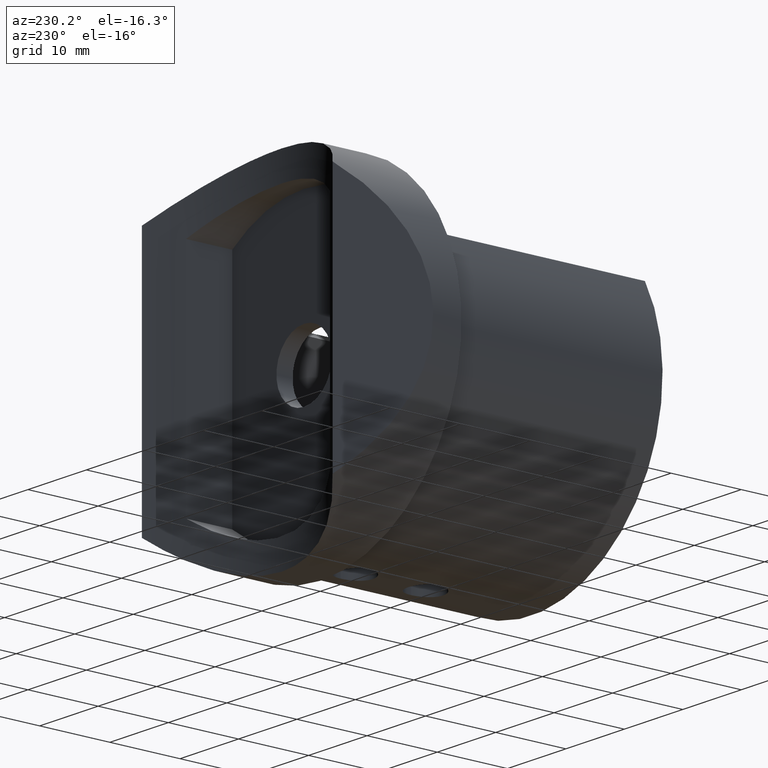
[diagram: clean part render]
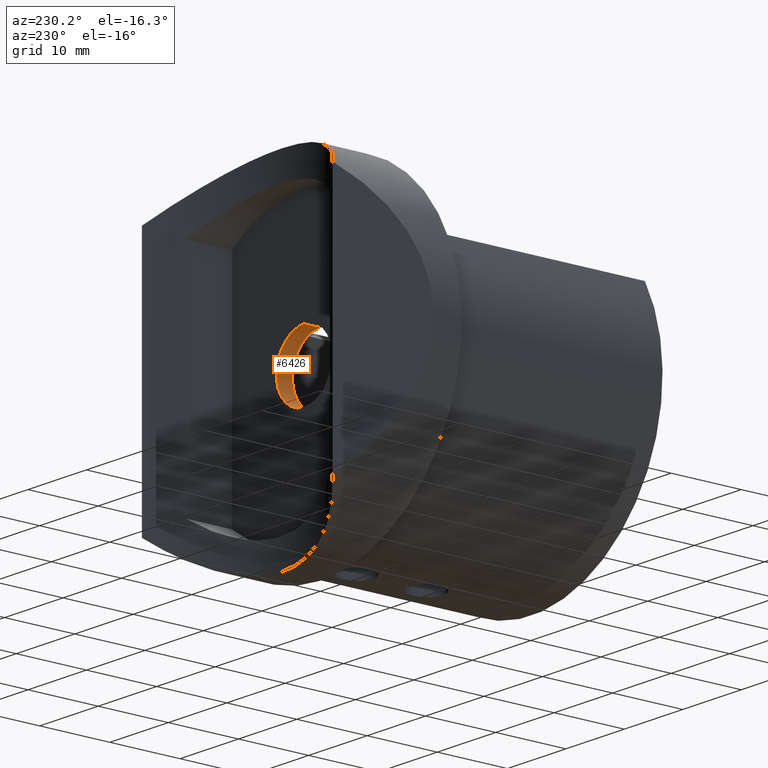
[diagram: same view with one face highlighted and labeled with its STEP entity id]
A machine part, auxiliary view. The second image highlights one B-rep face of the part: STEP entity #6426.
In plain terms, the highlighted cylindrical surface (partial cylindrical patch) has radius 4.75 mm, axis along (-0, -1, -0).
Its self-contained STEP definition (entity closure, byte-faithful):
#208 = CARTESIAN_POINT ( 'NONE',  ( 5.817072295949927400E-016, 2.299999999999999800, 4.750000000000000000 ) ) ;
#631 = CIRCLE ( 'NONE', #12107, 4.750000000000000000 ) ;
#1039 = VERTEX_POINT ( 'NONE', #12618 ) ;
#1176 = LINE ( 'NONE', #5980, #1864 ) ;
#1369 = DIRECTION ( 'NONE',  ( -0.0000000000000000000, -1.000000000000000000, -0.0000000000000000000 ) ) ;
#1416 = VECTOR ( 'NONE', #12999, 1000.000000000000000 ) ;
#1497 = DIRECTION ( 'NONE',  ( -0.0000000000000000000, -1.000000000000000000, -0.0000000000000000000 ) ) ;
#1600 = ORIENTED_EDGE ( 'NONE', *, *, #10693, .F. ) ;
#1864 = VECTOR ( 'NONE', #1497, 1000.000000000000000 ) ;
#2049 = AXIS2_PLACEMENT_3D ( 'NONE', #6764, #12310, #5777 ) ;
#2094 = CARTESIAN_POINT ( 'NONE',  ( 0.0000000000000000000, 0.0000000000000000000, -4.750000000000000000 ) ) ;
#2418 = VERTEX_POINT ( 'NONE', #7282 ) ;
#2476 = DIRECTION ( 'NONE',  ( 0.0000000000000000000, 0.0000000000000000000, -1.000000000000000000 ) ) ;
#2781 = ORIENTED_EDGE ( 'NONE', *, *, #10248, .F. ) ;
#3224 = CIRCLE ( 'NONE', #2049, 4.750000000000000000 ) ;
#3299 = FACE_OUTER_BOUND ( 'NONE', #14104, .T. ) ;
#4138 = CYLINDRICAL_SURFACE ( 'NONE', #6881, 4.750000000000000000 ) ;
#4666 = LINE ( 'NONE', #5322, #1416 ) ;
#4816 = VERTEX_POINT ( 'NONE', #2094 ) ;
#5322 = CARTESIAN_POINT ( 'NONE',  ( 0.0000000000000000000, 15.00000000000000000, -4.750000000000000000 ) ) ;
#5777 = DIRECTION ( 'NONE',  ( 0.0000000000000000000, 0.0000000000000000000, 1.000000000000000000 ) ) ;
#5980 = CARTESIAN_POINT ( 'NONE',  ( 5.817072295949927400E-016, 15.00000000000000000, 4.750000000000000000 ) ) ;
#6426 = ADVANCED_FACE ( 'NONE', ( #3299 ), #4138, .F. ) ;
#6622 = EDGE_CURVE ( 'NONE', #2418, #4816, #4666, .T. ) ;
#6648 = ORIENTED_EDGE ( 'NONE', *, *, #11483, .T. ) ;
#6764 = CARTESIAN_POINT ( 'NONE',  ( 0.0000000000000000000, 2.299999999999999800, 0.0000000000000000000 ) ) ;
#6804 = CARTESIAN_POINT ( 'NONE',  ( 0.0000000000000000000, 15.00000000000000000, 0.0000000000000000000 ) ) ;
#6881 = AXIS2_PLACEMENT_3D ( 'NONE', #6804, #1369, #2476 ) ;
#7282 = CARTESIAN_POINT ( 'NONE',  ( 0.0000000000000000000, 2.299999999999999800, -4.750000000000000000 ) ) ;
#8201 = CARTESIAN_POINT ( 'NONE',  ( 0.0000000000000000000, 0.0000000000000000000, 0.0000000000000000000 ) ) ;
#10248 = EDGE_CURVE ( 'NONE', #11070, #1039, #1176, .T. ) ;
#10693 = EDGE_CURVE ( 'NONE', #2418, #11070, #3224, .T. ) ;
#11070 = VERTEX_POINT ( 'NONE', #208 ) ;
#11217 = ORIENTED_EDGE ( 'NONE', *, *, #6622, .T. ) ;
#11483 = EDGE_CURVE ( 'NONE', #4816, #1039, #631, .T. ) ;
#12107 = AXIS2_PLACEMENT_3D ( 'NONE', #8201, #13627, #12453 ) ;
#12310 = DIRECTION ( 'NONE',  ( -0.0000000000000000000, -1.000000000000000000, -0.0000000000000000000 ) ) ;
#12453 = DIRECTION ( 'NONE',  ( 0.0000000000000000000, 0.0000000000000000000, -1.000000000000000000 ) ) ;
#12618 = CARTESIAN_POINT ( 'NONE',  ( 5.817072295949927400E-016, 0.0000000000000000000, 4.750000000000000000 ) ) ;
#12999 = DIRECTION ( 'NONE',  ( -0.0000000000000000000, -1.000000000000000000, -0.0000000000000000000 ) ) ;
#13627 = DIRECTION ( 'NONE',  ( 0.0000000000000000000, -1.000000000000000000, 0.0000000000000000000 ) ) ;
#14104 = EDGE_LOOP ( 'NONE', ( #2781, #1600, #11217, #6648 ) ) ;